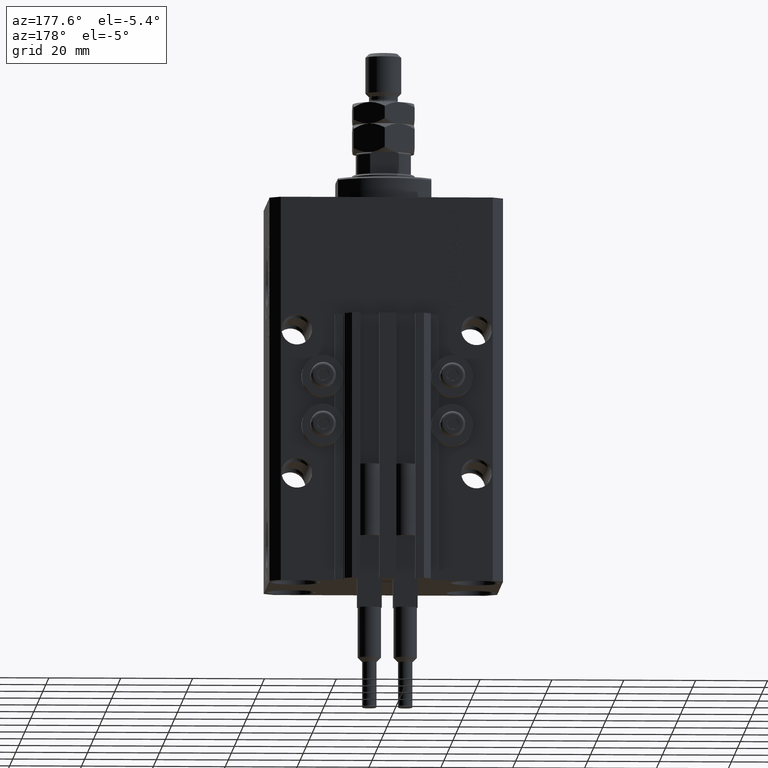
[diagram: clean part render]
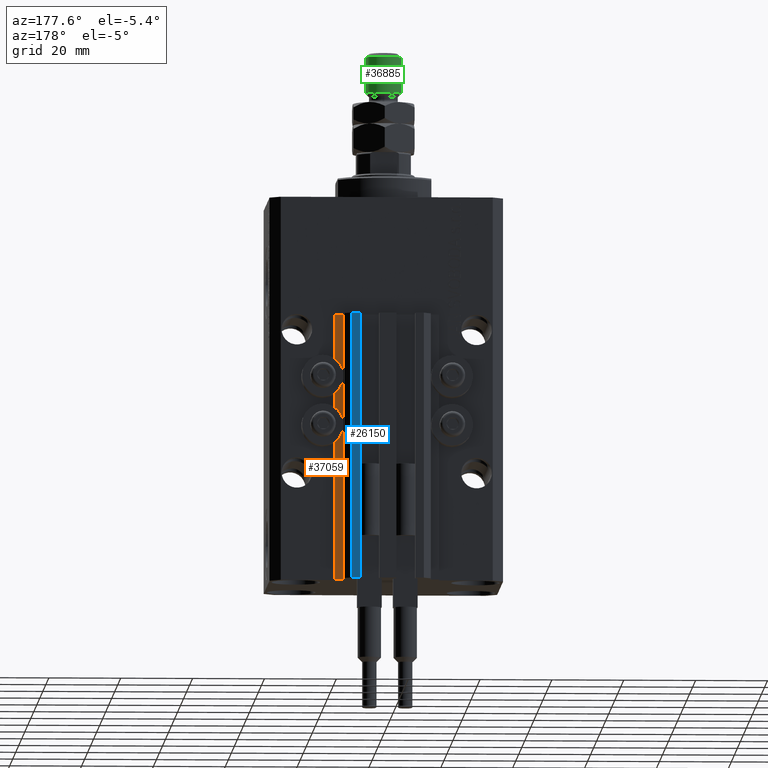
[diagram: same view with three faces highlighted in distinct colors, each labeled with its STEP entity id]
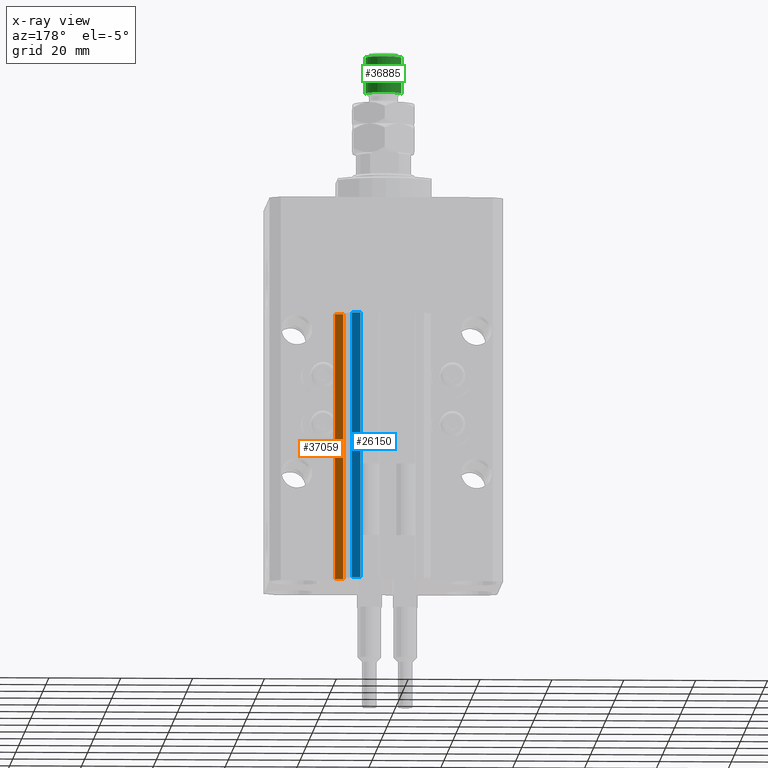
[diagram: x-ray of the same camera — body ghosted, the three highlighted faces saturated]
A machine part, auxiliary view with three faces highlighted in distinct colors.
The next image is the same camera in x-ray (body ghosted, the three faces saturated) — at least one of them is partly hidden behind the body in this view.
Their STEP definitions:

[orange] entity #37059 — the highlighted planar face has unit normal (0, 1, 0).
#352 = DIRECTION ( 'NONE',  ( 0.000000000000000000, 1.000000000000000000, -0.000000000000000000 ) ) ;
#719 = VERTEX_POINT ( 'NONE', #47718 ) ;
#1434 = CARTESIAN_POINT ( 'NONE',  ( 14.49999999999999822, 24.99999999999950617, -33.00000000000000000 ) ) ;
#2261 = LINE ( 'NONE', #10692, #21444 ) ;
#3806 = ORIENTED_EDGE ( 'NONE', *, *, #27518, .T. ) ;
#5846 = CARTESIAN_POINT ( 'NONE',  ( 12.20000000000000284, 24.99999999999950617, -107.0000000000000000 ) ) ;
#8771 = CARTESIAN_POINT ( 'NONE',  ( 14.49999999999999822, 24.99999999999950617, -107.0000000000000000 ) ) ;
#10692 = CARTESIAN_POINT ( 'NONE',  ( 14.49999999999999822, 24.99999999999950617, -107.0000000000000000 ) ) ;
#14384 = VECTOR ( 'NONE', #45763, 1000.000000000000000 ) ;
#14594 = CARTESIAN_POINT ( 'NONE',  ( 14.49999999999999822, 24.99999999999950617, -107.0000000000000000 ) ) ;
#15980 = DIRECTION ( 'NONE',  ( 0.000000000000000000, 0.000000000000000000, 1.000000000000000000 ) ) ;
#16076 = AXIS2_PLACEMENT_3D ( 'NONE', #8771, #352, #15980 ) ;
#16472 = EDGE_CURVE ( 'NONE', #719, #40123, #17886, .T. ) ;
#17886 = LINE ( 'NONE', #5846, #14384 ) ;
#21444 = VECTOR ( 'NONE', #41663, 1000.000000000000000 ) ;
#21894 = EDGE_CURVE ( 'NONE', #34772, #22157, #2261, .T. ) ;
#22157 = VERTEX_POINT ( 'NONE', #49027 ) ;
#23898 = PLANE ( 'NONE',  #16076 ) ;
#24110 = DIRECTION ( 'NONE',  ( -1.000000000000000000, 0.000000000000000000, 0.000000000000000000 ) ) ;
#24949 = ORIENTED_EDGE ( 'NONE', *, *, #21894, .F. ) ;
#26372 = EDGE_LOOP ( 'NONE', ( #42524, #24949, #3806, #35505 ) ) ;
#27518 = EDGE_CURVE ( 'NONE', #34772, #719, #43554, .T. ) ;
#27935 = CARTESIAN_POINT ( 'NONE',  ( 12.20000000000000284, 24.99999999999950617, -33.00000000000000000 ) ) ;
#27987 = VECTOR ( 'NONE', #40351, 1000.000000000000000 ) ;
#28190 = CARTESIAN_POINT ( 'NONE',  ( 14.49999999999999822, 24.99999999999950617, -107.0000000000000000 ) ) ;
#32164 = VECTOR ( 'NONE', #24110, 1000.000000000000000 ) ;
#32922 = LINE ( 'NONE', #1434, #27987 ) ;
#34772 = VERTEX_POINT ( 'NONE', #14594 ) ;
#35505 = ORIENTED_EDGE ( 'NONE', *, *, #16472, .T. ) ;
#37059 = ADVANCED_FACE ( 'NONE', ( #43342 ), #23898, .T. ) ;
#40123 = VERTEX_POINT ( 'NONE', #27935 ) ;
#40351 = DIRECTION ( 'NONE',  ( -1.000000000000000000, 0.000000000000000000, 0.000000000000000000 ) ) ;
#41663 = DIRECTION ( 'NONE',  ( 0.000000000000000000, 0.000000000000000000, 1.000000000000000000 ) ) ;
#42524 = ORIENTED_EDGE ( 'NONE', *, *, #50209, .F. ) ;
#43342 = FACE_OUTER_BOUND ( 'NONE', #26372, .T. ) ;
#43554 = LINE ( 'NONE', #28190, #32164 ) ;
#45763 = DIRECTION ( 'NONE',  ( 0.000000000000000000, 0.000000000000000000, 1.000000000000000000 ) ) ;
#47718 = CARTESIAN_POINT ( 'NONE',  ( 12.20000000000000284, 24.99999999999950617, -107.0000000000000000 ) ) ;
#49027 = CARTESIAN_POINT ( 'NONE',  ( 14.49999999999999822, 24.99999999999950617, -33.00000000000000000 ) ) ;
#50209 = EDGE_CURVE ( 'NONE', #22157, #40123, #32922, .T. ) ;

[blue] entity #26150 — the highlighted planar face has unit normal (-0, 1, 0).
#118 = VERTEX_POINT ( 'NONE', #8684 ) ;
#190 = CARTESIAN_POINT ( 'NONE',  ( 9.999999999999994671, 30.49999999999949551, -33.00000000000000000 ) ) ;
#4469 = DIRECTION ( 'NONE',  ( -1.000000000000000000, -1.476360405086644852E-15, 0.000000000000000000 ) ) ;
#4499 = DIRECTION ( 'NONE',  ( 0.000000000000000000, 0.000000000000000000, 1.000000000000000000 ) ) ;
#6587 = VECTOR ( 'NONE', #35017, 1000.000000000000000 ) ;
#8684 = CARTESIAN_POINT ( 'NONE',  ( 9.999999999999994671, 30.49999999999949551, -107.0000000000000000 ) ) ;
#9000 = EDGE_CURVE ( 'NONE', #118, #49696, #14223, .T. ) ;
#9953 = VECTOR ( 'NONE', #4499, 1000.000000000000000 ) ;
#10370 = DIRECTION ( 'NONE',  ( 0.000000000000000000, 0.000000000000000000, 1.000000000000000000 ) ) ;
#11625 = VECTOR ( 'NONE', #34731, 1000.000000000000000 ) ;
#12547 = VECTOR ( 'NONE', #10370, 1000.000000000000000 ) ;
#12574 = ORIENTED_EDGE ( 'NONE', *, *, #21159, .T. ) ;
#14223 = LINE ( 'NONE', #29829, #12547 ) ;
#15734 = PLANE ( 'NONE',  #29693 ) ;
#20902 = ORIENTED_EDGE ( 'NONE', *, *, #46564, .F. ) ;
#21159 = EDGE_CURVE ( 'NONE', #118, #33065, #46517, .T. ) ;
#23265 = EDGE_CURVE ( 'NONE', #33065, #41186, #45973, .T. ) ;
#23618 = CARTESIAN_POINT ( 'NONE',  ( 7.649999999999995026, 30.49999999999949196, -33.00000000000000000 ) ) ;
#23744 = LINE ( 'NONE', #190, #6587 ) ;
#26150 = ADVANCED_FACE ( 'NONE', ( #31587 ), #15734, .T. ) ;
#26527 = CARTESIAN_POINT ( 'NONE',  ( 7.649999999999995026, 30.49999999999949196, -107.0000000000000000 ) ) ;
#29159 = CARTESIAN_POINT ( 'NONE',  ( 7.649999999999995026, 30.49999999999949196, -107.0000000000000000 ) ) ;
#29693 = AXIS2_PLACEMENT_3D ( 'NONE', #42862, #43109, #4469 ) ;
#29829 = CARTESIAN_POINT ( 'NONE',  ( 9.999999999999994671, 30.49999999999949551, -107.0000000000000000 ) ) ;
#31433 = EDGE_LOOP ( 'NONE', ( #20902, #37674, #12574, #47093 ) ) ;
#31587 = FACE_OUTER_BOUND ( 'NONE', #31433, .T. ) ;
#33065 = VERTEX_POINT ( 'NONE', #29159 ) ;
#34731 = DIRECTION ( 'NONE',  ( -1.000000000000000000, -1.476360405086644852E-15, 0.000000000000000000 ) ) ;
#35017 = DIRECTION ( 'NONE',  ( -1.000000000000000000, -1.476360405086644852E-15, 0.000000000000000000 ) ) ;
#37674 = ORIENTED_EDGE ( 'NONE', *, *, #9000, .F. ) ;
#38842 = CARTESIAN_POINT ( 'NONE',  ( 9.999999999999994671, 30.49999999999949551, -107.0000000000000000 ) ) ;
#41186 = VERTEX_POINT ( 'NONE', #23618 ) ;
#42862 = CARTESIAN_POINT ( 'NONE',  ( 9.999999999999994671, 30.49999999999949551, -107.0000000000000000 ) ) ;
#43109 = DIRECTION ( 'NONE',  ( -1.476360405086644852E-15, 1.000000000000000000, 0.000000000000000000 ) ) ;
#45973 = LINE ( 'NONE', #26527, #9953 ) ;
#46517 = LINE ( 'NONE', #38842, #11625 ) ;
#46564 = EDGE_CURVE ( 'NONE', #49696, #41186, #23744, .T. ) ;
#47093 = ORIENTED_EDGE ( 'NONE', *, *, #23265, .T. ) ;
#49550 = CARTESIAN_POINT ( 'NONE',  ( 9.999999999999994671, 30.49999999999949551, -33.00000000000000000 ) ) ;
#49696 = VERTEX_POINT ( 'NONE', #49550 ) ;

[green] entity #36885 — the highlighted cylindrical surface (edge-blend (fillet) strip) has radius 5 mm, axis along (-0, -0, -1).
#1046 = CARTESIAN_POINT ( 'NONE',  ( 0.000000000000000000, 0.000000000000000000, 26.99999999999998934 ) ) ;
#2936 = CYLINDRICAL_SURFACE ( 'NONE', #19380, 5.000000000000000000 ) ;
#3200 = AXIS2_PLACEMENT_3D ( 'NONE', #34742, #15061, #37823 ) ;
#3224 = CARTESIAN_POINT ( 'NONE',  ( 5.000000000000000000, 6.123233995736766282E-16, 17.00000000000000355 ) ) ;
#5630 = DIRECTION ( 'NONE',  ( -0.000000000000000000, -0.000000000000000000, -1.000000000000000000 ) ) ;
#6817 = CIRCLE ( 'NONE', #24769, 5.000000000000000000 ) ;
#7155 = EDGE_CURVE ( 'NONE', #35635, #16730, #6817, .T. ) ;
#9491 = DIRECTION ( 'NONE',  ( 1.000000000000000000, 0.000000000000000000, 0.000000000000000000 ) ) ;
#10351 = VECTOR ( 'NONE', #5630, 1000.000000000000000 ) ;
#11304 = VERTEX_POINT ( 'NONE', #3224 ) ;
#14976 = CARTESIAN_POINT ( 'NONE',  ( 0.000000000000000000, 0.000000000000000000, 28.00000000000000000 ) ) ;
#15061 = DIRECTION ( 'NONE',  ( -0.000000000000000000, -0.000000000000000000, 1.000000000000000000 ) ) ;
#16730 = VERTEX_POINT ( 'NONE', #32169 ) ;
#18618 = ORIENTED_EDGE ( 'NONE', *, *, #35036, .T. ) ;
#18826 = DIRECTION ( 'NONE',  ( -0.000000000000000000, -0.000000000000000000, -1.000000000000000000 ) ) ;
#19034 = CARTESIAN_POINT ( 'NONE',  ( -5.000000000000000000, 0.000000000000000000, 17.00000000000000355 ) ) ;
#19380 = AXIS2_PLACEMENT_3D ( 'NONE', #14976, #18826, #26740 ) ;
#19546 = CIRCLE ( 'NONE', #3200, 5.000000000000000000 ) ;
#23381 = VECTOR ( 'NONE', #32690, 1000.000000000000000 ) ;
#24035 = CARTESIAN_POINT ( 'NONE',  ( 5.000000000000000000, 6.123233995736766282E-16, 28.00000000000000000 ) ) ;
#24769 = AXIS2_PLACEMENT_3D ( 'NONE', #1046, #32525, #9491 ) ;
#25725 = ORIENTED_EDGE ( 'NONE', *, *, #37419, .F. ) ;
#26740 = DIRECTION ( 'NONE',  ( -1.000000000000000000, 0.000000000000000000, 0.000000000000000000 ) ) ;
#28357 = LINE ( 'NONE', #24035, #23381 ) ;
#32169 = CARTESIAN_POINT ( 'NONE',  ( 5.000000000000000000, 6.123233995736766282E-16, 26.99999999999998934 ) ) ;
#32525 = DIRECTION ( 'NONE',  ( 0.000000000000000000, 0.000000000000000000, -1.000000000000000000 ) ) ;
#32690 = DIRECTION ( 'NONE',  ( -0.000000000000000000, -0.000000000000000000, -1.000000000000000000 ) ) ;
#33271 = LINE ( 'NONE', #40686, #10351 ) ;
#34529 = EDGE_LOOP ( 'NONE', ( #38370, #18618, #47294, #25725 ) ) ;
#34742 = CARTESIAN_POINT ( 'NONE',  ( 0.000000000000000000, 0.000000000000000000, 17.00000000000000355 ) ) ;
#35036 = EDGE_CURVE ( 'NONE', #16730, #11304, #28357, .T. ) ;
#35635 = VERTEX_POINT ( 'NONE', #45111 ) ;
#36885 = ADVANCED_FACE ( 'NONE', ( #50540 ), #2936, .T. ) ;
#37419 = EDGE_CURVE ( 'NONE', #35635, #48432, #33271, .T. ) ;
#37823 = DIRECTION ( 'NONE',  ( 1.000000000000000000, 0.000000000000000000, 0.000000000000000000 ) ) ;
#38370 = ORIENTED_EDGE ( 'NONE', *, *, #7155, .T. ) ;
#40686 = CARTESIAN_POINT ( 'NONE',  ( -5.000000000000000000, 0.000000000000000000, 28.00000000000000000 ) ) ;
#42423 = EDGE_CURVE ( 'NONE', #11304, #48432, #19546, .T. ) ;
#45111 = CARTESIAN_POINT ( 'NONE',  ( -5.000000000000000000, 0.000000000000000000, 26.99999999999998934 ) ) ;
#47294 = ORIENTED_EDGE ( 'NONE', *, *, #42423, .T. ) ;
#48432 = VERTEX_POINT ( 'NONE', #19034 ) ;
#50540 = FACE_OUTER_BOUND ( 'NONE', #34529, .T. ) ;